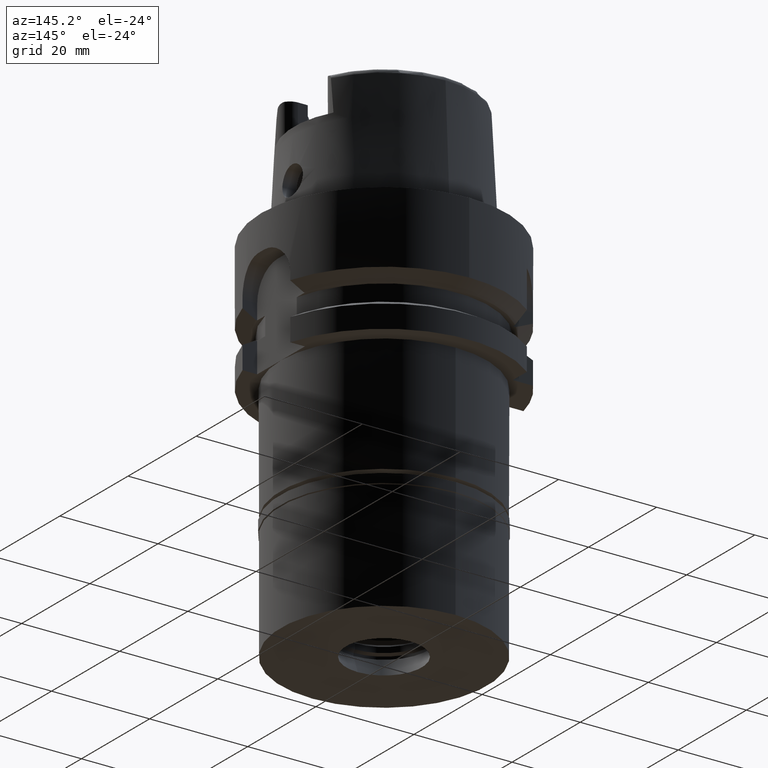
[diagram: clean part render]
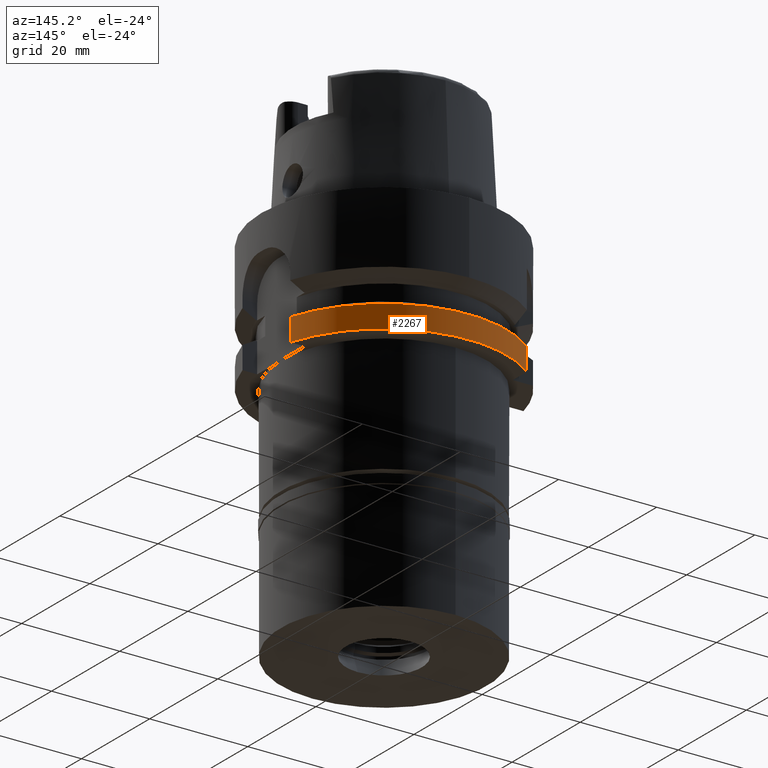
[diagram: same view with one face highlighted and labeled with its STEP entity id]
A machine part, auxiliary view. The second image highlights one B-rep face of the part: STEP entity #2267.
In plain terms, the highlighted cylindrical surface (partial cylindrical patch) has radius 25 mm, axis along (0, 0, 1).
Its self-contained STEP definition (entity closure, byte-faithful):
#110 = CARTESIAN_POINT ( 'NONE',  ( 23.99999968286999774, 7.000001087319999371, -21.37750801981999871 ) ) ;
#286 = VECTOR ( 'NONE', #1900, 1000.000000000000000 ) ;
#401 = CARTESIAN_POINT ( 'NONE',  ( -15.50001397709000095, 19.61503420108000029, -21.37755022036999719 ) ) ;
#471 = ORIENTED_EDGE ( 'NONE', *, *, #3331, .F. ) ;
#538 = AXIS2_PLACEMENT_3D ( 'NONE', #4393, #1034, #5236 ) ;
#627 = DIRECTION ( 'NONE',  ( 0.0000000000000000000, 1.000000000000000000, 0.0000000000000000000 ) ) ;
#628 = EDGE_LOOP ( 'NONE', ( #5079, #471, #4514, #2257 ) ) ;
#1034 = DIRECTION ( 'NONE',  ( 0.0000000000000000000, 0.0000000000000000000, 1.000000000000000000 ) ) ;
#1133 = CARTESIAN_POINT ( 'NONE',  ( 0.0000000000000000000, 0.0000000000000000000, -21.37749907476000288 ) ) ;
#1231 = AXIS2_PLACEMENT_3D ( 'NONE', #1133, #2375, #4080 ) ;
#1495 = CIRCLE ( 'NONE', #1231, 24.99999999999999645 ) ;
#1721 = CARTESIAN_POINT ( 'NONE',  ( -15.50000000000000000, 19.61503788269864756, -22.91836681357999694 ) ) ;
#1833 = FACE_OUTER_BOUND ( 'NONE', #628, .T. ) ;
#1840 = VERTEX_POINT ( 'NONE', #110 ) ;
#1866 = LINE ( 'NONE', #5307, #286 ) ;
#1900 = DIRECTION ( 'NONE',  ( -6.860685686754789392E-08, 2.352237569595930157E-07, 0.9999999999999700240 ) ) ;
#2017 = EDGE_CURVE ( 'NONE', #4655, #1840, #1495, .T. ) ;
#2257 = ORIENTED_EDGE ( 'NONE', *, *, #2712, .F. ) ;
#2267 = ADVANCED_FACE ( 'NONE', ( #1833 ), #5194, .T. ) ;
#2280 = DIRECTION ( 'NONE',  ( 0.0000000000000000000, 0.0000000000000000000, 1.000000000000000000 ) ) ;
#2375 = DIRECTION ( 'NONE',  ( 0.0000000000000000000, 0.0000000000000000000, -1.000000000000000000 ) ) ;
#2498 = VERTEX_POINT ( 'NONE', #2883 ) ;
#2712 = EDGE_CURVE ( 'NONE', #4655, #3658, #3937, .T. ) ;
#2853 = AXIS2_PLACEMENT_3D ( 'NONE', #4377, #2280, #627 ) ;
#2883 = CARTESIAN_POINT ( 'NONE',  ( 24.00000000000000000, 7.000000000000000000, -26.00000000000000000 ) ) ;
#3191 = EDGE_CURVE ( 'NONE', #2498, #3658, #4351, .T. ) ;
#3331 = EDGE_CURVE ( 'NONE', #2498, #1840, #1866, .T. ) ;
#3658 = VERTEX_POINT ( 'NONE', #4649 ) ;
#3937 = B_SPLINE_CURVE_WITH_KNOTS ( 'NONE', 3,
 ( #401, #1721, #4617, #5105 ),
 .UNSPECIFIED., .F., .F.,
 ( 4, 4 ),
 ( 0.0000000000000000000, 1.000000000000000000 ),
 .UNSPECIFIED. ) ;
#4080 = DIRECTION ( 'NONE',  ( -0.6200000000000721601, 0.7846018098372642413, 0.0000000000000000000 ) ) ;
#4351 = CIRCLE ( 'NONE', #538, 25.00000000000000000 ) ;
#4377 = CARTESIAN_POINT ( 'NONE',  ( 0.0000000000000000000, 0.0000000000000000000, -72.12500000000000000 ) ) ;
#4393 = CARTESIAN_POINT ( 'NONE',  ( 0.0000000000000000000, 0.0000000000000000000, -26.00000000000000000 ) ) ;
#4514 = ORIENTED_EDGE ( 'NONE', *, *, #3191, .T. ) ;
#4617 = CARTESIAN_POINT ( 'NONE',  ( -15.50000000000000000, 19.61504156431730195, -24.45918340679000025 ) ) ;
#4637 = CARTESIAN_POINT ( 'NONE',  ( -15.50001397709000095, 19.61503420108000029, -21.37755022036999719 ) ) ;
#4649 = CARTESIAN_POINT ( 'NONE',  ( -15.50000000000000000, 19.61504524592999843, -26.00000000000000000 ) ) ;
#4655 = VERTEX_POINT ( 'NONE', #4637 ) ;
#5079 = ORIENTED_EDGE ( 'NONE', *, *, #2017, .T. ) ;
#5105 = CARTESIAN_POINT ( 'NONE',  ( -15.50000000000000000, 19.61504524592999843, -26.00000000000000000 ) ) ;
#5194 = CYLINDRICAL_SURFACE ( 'NONE', #2853, 25.00000000000000000 ) ;
#5236 = DIRECTION ( 'NONE',  ( 0.0000000000000000000, 1.000000000000000000, 0.0000000000000000000 ) ) ;
#5307 = CARTESIAN_POINT ( 'NONE',  ( 24.00000000000000000, 7.000000000000000000, -26.00000000000000000 ) ) ;